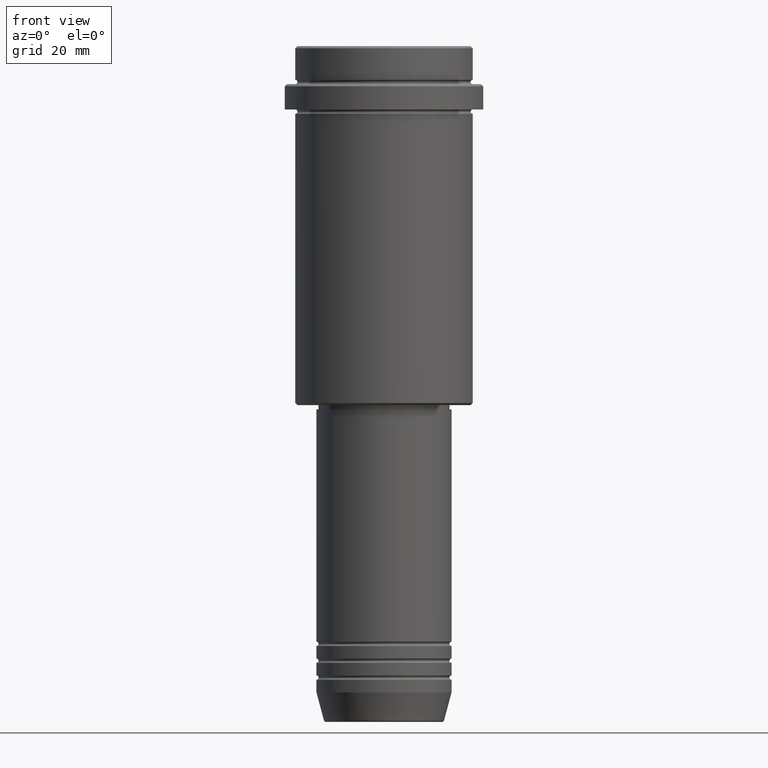
[diagram: clean part render]
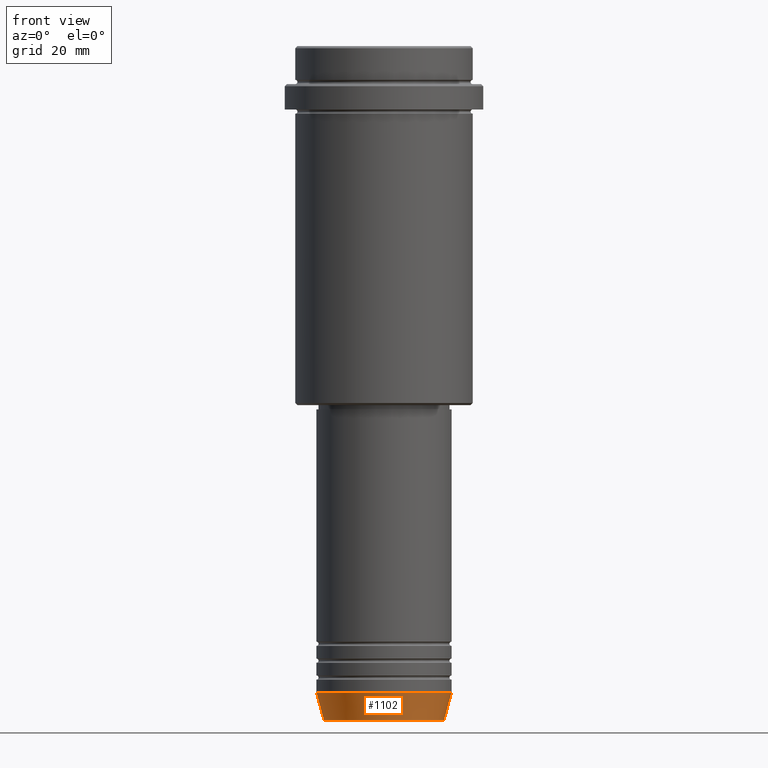
[diagram: same view with one face highlighted and labeled with its STEP entity id]
A machine part, front view. The second image highlights one B-rep face of the part: STEP entity #1102.
In plain terms, the highlighted conical surface has half-angle 15 deg.
Its self-contained STEP definition (entity closure, byte-faithful):
#2 = CARTESIAN_POINT ( 'NONE',  ( 0.000000000000000000, 0.000000000000000000, -153.0000000000000000 ) ) ;
#24 = VERTEX_POINT ( 'NONE', #424 ) ;
#74 = EDGE_CURVE ( 'NONE', #121, #1343, #118, .T. ) ;
#118 = LINE ( 'NONE', #226, #282 ) ;
#121 = VERTEX_POINT ( 'NONE', #455 ) ;
#139 = DIRECTION ( 'NONE',  ( 0.2588190451025213501, 0.000000000000000000, 0.9659258262890680902 ) ) ;
#153 = DIRECTION ( 'NONE',  ( -0.000000000000000000, -0.000000000000000000, 1.000000000000000000 ) ) ;
#208 = CARTESIAN_POINT ( 'NONE',  ( 0.000000000000000000, 0.000000000000000000, -159.6294095225512422 ) ) ;
#226 = CARTESIAN_POINT ( 'NONE',  ( -16.00000000000000000, 1.959434878635765131E-15, -153.0000000000000000 ) ) ;
#249 = LINE ( 'NONE', #678, #506 ) ;
#279 = ORIENTED_EDGE ( 'NONE', *, *, #74, .F. ) ;
#282 = VECTOR ( 'NONE', #1321, 1000.000000000000000 ) ;
#299 = DIRECTION ( 'NONE',  ( -0.000000000000000000, -0.000000000000000000, 1.000000000000000000 ) ) ;
#399 = ORIENTED_EDGE ( 'NONE', *, *, #692, .T. ) ;
#413 = CIRCLE ( 'NONE', #1041, 16.00000000000000000 ) ;
#424 = CARTESIAN_POINT ( 'NONE',  ( 16.00000000000000000, 0.000000000000000000, -153.0000000000000000 ) ) ;
#455 = CARTESIAN_POINT ( 'NONE',  ( -14.22365507213718772, 1.850665122131323337E-15, -159.6294095225512422 ) ) ;
#506 = VECTOR ( 'NONE', #139, 1000.000000000000000 ) ;
#585 = EDGE_LOOP ( 'NONE', ( #279, #1038, #399, #1046 ) ) ;
#678 = CARTESIAN_POINT ( 'NONE',  ( 16.00000000000000000, 0.000000000000000000, -153.0000000000000000 ) ) ;
#692 = EDGE_CURVE ( 'NONE', #882, #24, #249, .T. ) ;
#743 = EDGE_CURVE ( 'NONE', #1343, #24, #413, .T. ) ;
#823 = CARTESIAN_POINT ( 'NONE',  ( -16.00000000000000000, 1.959434878635765131E-15, -153.0000000000000000 ) ) ;
#836 = DIRECTION ( 'NONE',  ( 1.000000000000000000, 0.000000000000000000, 0.000000000000000000 ) ) ;
#867 = FACE_OUTER_BOUND ( 'NONE', #585, .T. ) ;
#872 = DIRECTION ( 'NONE',  ( -0.000000000000000000, -0.000000000000000000, 1.000000000000000000 ) ) ;
#882 = VERTEX_POINT ( 'NONE', #1160 ) ;
#949 = AXIS2_PLACEMENT_3D ( 'NONE', #2, #872, #1100 ) ;
#958 = EDGE_CURVE ( 'NONE', #121, #882, #1243, .T. ) ;
#1020 = AXIS2_PLACEMENT_3D ( 'NONE', #208, #299, #836 ) ;
#1038 = ORIENTED_EDGE ( 'NONE', *, *, #958, .T. ) ;
#1041 = AXIS2_PLACEMENT_3D ( 'NONE', #1346, #153, #1366 ) ;
#1046 = ORIENTED_EDGE ( 'NONE', *, *, #743, .F. ) ;
#1100 = DIRECTION ( 'NONE',  ( 1.000000000000000000, 0.000000000000000000, 0.000000000000000000 ) ) ;
#1102 = ADVANCED_FACE ( 'NONE', ( #867 ), #1198, .T. ) ;
#1160 = CARTESIAN_POINT ( 'NONE',  ( 14.22365507213718772, 0.000000000000000000, -159.6294095225512422 ) ) ;
#1198 = CONICAL_SURFACE ( 'NONE', #949, 16.00000000000000000, 0.2617993877991500740 ) ;
#1243 = CIRCLE ( 'NONE', #1020, 14.22365507213718772 ) ;
#1321 = DIRECTION ( 'NONE',  ( -0.2588190451025213501, 3.169619151431772337E-17, 0.9659258262890680902 ) ) ;
#1343 = VERTEX_POINT ( 'NONE', #823 ) ;
#1346 = CARTESIAN_POINT ( 'NONE',  ( 0.000000000000000000, 0.000000000000000000, -153.0000000000000000 ) ) ;
#1366 = DIRECTION ( 'NONE',  ( 1.000000000000000000, 0.000000000000000000, 0.000000000000000000 ) ) ;